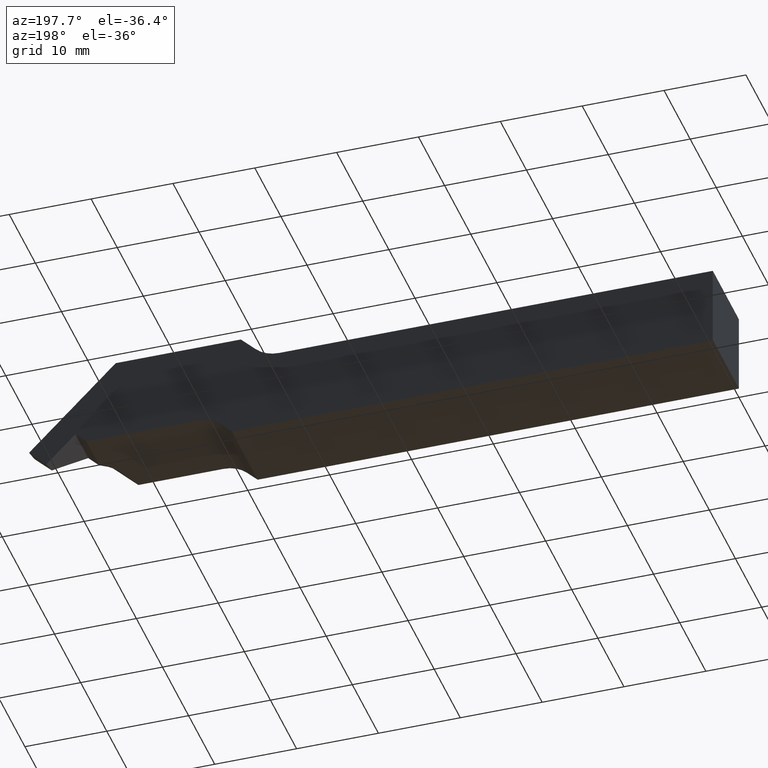
[diagram: clean part render]
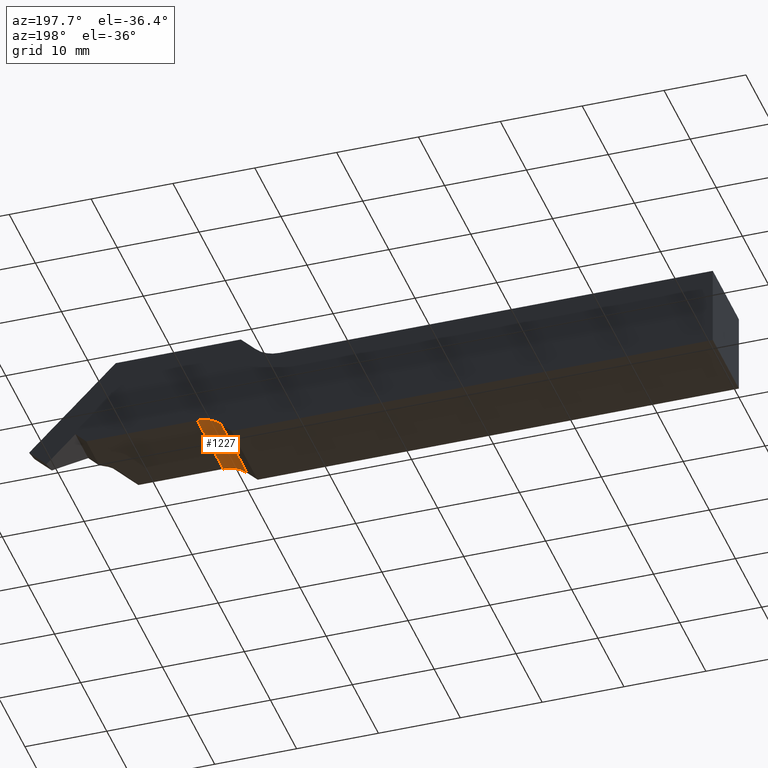
[diagram: same view with one face highlighted and labeled with its STEP entity id]
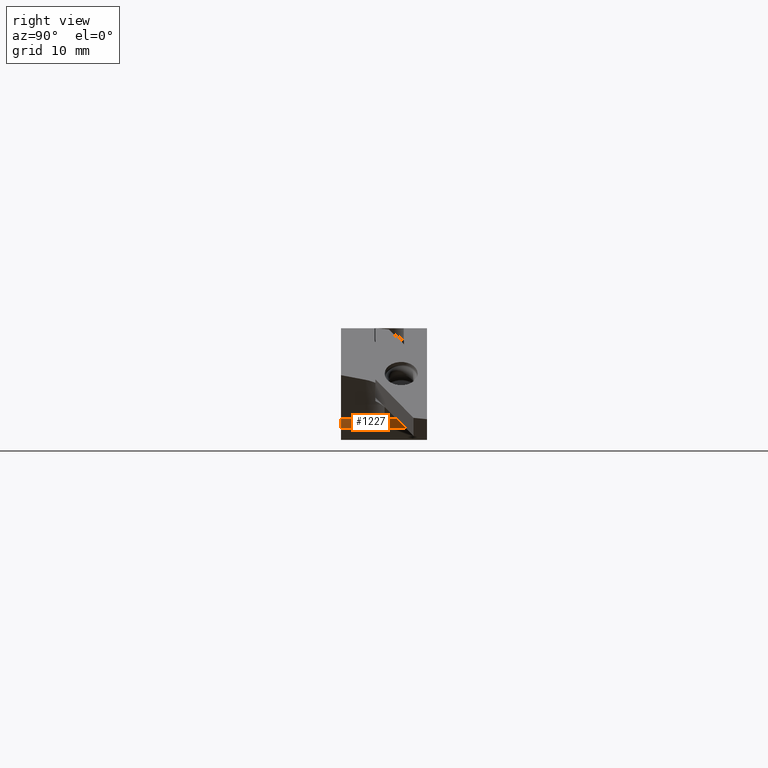
[diagram: same view with one face highlighted and labeled with its STEP entity id]
A machine part, auxiliary view. The second image highlights one B-rep face of the part: STEP entity #1227.
A second angle (right view) of the same face is appended — the face is thin or edge-on in the first view.
In plain terms, the highlighted cylindrical surface (edge-blend (fillet) strip) has radius 4.1 mm, axis along (-0, -1, -0).
Its self-contained STEP definition (entity closure, byte-faithful):
#23 = EDGE_CURVE ( 'NONE', #878, #734, #362, .T. ) ;
#87 = EDGE_CURVE ( 'NONE', #284, #734, #249, .T. ) ;
#147 = DIRECTION ( 'NONE',  ( -0.000000000000000000, -1.000000000000000000, -0.000000000000000000 ) ) ;
#173 = EDGE_LOOP ( 'NONE', ( #699, #1295, #751, #868 ) ) ;
#208 = AXIS2_PLACEMENT_3D ( 'NONE', #370, #789, #584 ) ;
#249 = LINE ( 'NONE', #1086, #339 ) ;
#278 = CARTESIAN_POINT ( 'NONE',  ( 60.10086219713516442, 0.000000000000000000, 1.299137802864853697 ) ) ;
#284 = VERTEX_POINT ( 'NONE', #994 ) ;
#311 = CARTESIAN_POINT ( 'NONE',  ( 63.00000000000000000, 10.00000000000000000, -1.600000000000012967 ) ) ;
#314 = VERTEX_POINT ( 'NONE', #1287 ) ;
#339 = VECTOR ( 'NONE', #147, 1000.000000000000000 ) ;
#362 = CIRCLE ( 'NONE', #208, 4.100000000000003197 ) ;
#370 = CARTESIAN_POINT ( 'NONE',  ( 63.00000000000000000, 0.000000000000000000, -1.600000000000012967 ) ) ;
#416 = DIRECTION ( 'NONE',  ( -0.000000000000000000, -1.000000000000000000, -0.000000000000000000 ) ) ;
#487 = CARTESIAN_POINT ( 'NONE',  ( 63.00000000000000000, 0.000000000000000000, 2.499999999999990230 ) ) ;
#500 = CIRCLE ( 'NONE', #1026, 4.100000000000003197 ) ;
#581 = DIRECTION ( 'NONE',  ( -0.000000000000000000, -1.000000000000000000, -0.000000000000000000 ) ) ;
#584 = DIRECTION ( 'NONE',  ( 0.000000000000000000, 0.000000000000000000, 1.000000000000000000 ) ) ;
#585 = EDGE_CURVE ( 'NONE', #314, #284, #500, .T. ) ;
#623 = DIRECTION ( 'NONE',  ( 0.000000000000000000, 0.000000000000000000, 1.000000000000000000 ) ) ;
#699 = ORIENTED_EDGE ( 'NONE', *, *, #23, .F. ) ;
#715 = VECTOR ( 'NONE', #581, 1000.000000000000000 ) ;
#734 = VERTEX_POINT ( 'NONE', #487 ) ;
#740 = DIRECTION ( 'NONE',  ( 0.000000000000000000, 0.000000000000000000, -1.000000000000000000 ) ) ;
#746 = CARTESIAN_POINT ( 'NONE',  ( 63.00000000000000000, 10.00000000000000000, -1.600000000000012967 ) ) ;
#751 = ORIENTED_EDGE ( 'NONE', *, *, #585, .T. ) ;
#789 = DIRECTION ( 'NONE',  ( 0.000000000000000000, 1.000000000000000000, 0.000000000000000000 ) ) ;
#816 = FACE_OUTER_BOUND ( 'NONE', #173, .T. ) ;
#819 = EDGE_CURVE ( 'NONE', #314, #878, #1006, .T. ) ;
#868 = ORIENTED_EDGE ( 'NONE', *, *, #87, .T. ) ;
#878 = VERTEX_POINT ( 'NONE', #278 ) ;
#917 = AXIS2_PLACEMENT_3D ( 'NONE', #311, #416, #740 ) ;
#993 = CARTESIAN_POINT ( 'NONE',  ( 60.10086219713516442, 10.00000000000000000, 1.299137802864853697 ) ) ;
#994 = CARTESIAN_POINT ( 'NONE',  ( 63.00000000000000000, 10.00000000000000000, 2.499999999999990230 ) ) ;
#1006 = LINE ( 'NONE', #993, #715 ) ;
#1026 = AXIS2_PLACEMENT_3D ( 'NONE', #746, #1328, #623 ) ;
#1086 = CARTESIAN_POINT ( 'NONE',  ( 63.00000000000000000, 10.00000000000000000, 2.499999999999990230 ) ) ;
#1227 = ADVANCED_FACE ( 'NONE', ( #816 ), #1249, .F. ) ;
#1249 = CYLINDRICAL_SURFACE ( 'NONE', #917, 4.100000000000003197 ) ;
#1287 = CARTESIAN_POINT ( 'NONE',  ( 60.10086219713516442, 10.00000000000000000, 1.299137802864853697 ) ) ;
#1295 = ORIENTED_EDGE ( 'NONE', *, *, #819, .F. ) ;
#1328 = DIRECTION ( 'NONE',  ( 0.000000000000000000, 1.000000000000000000, 0.000000000000000000 ) ) ;